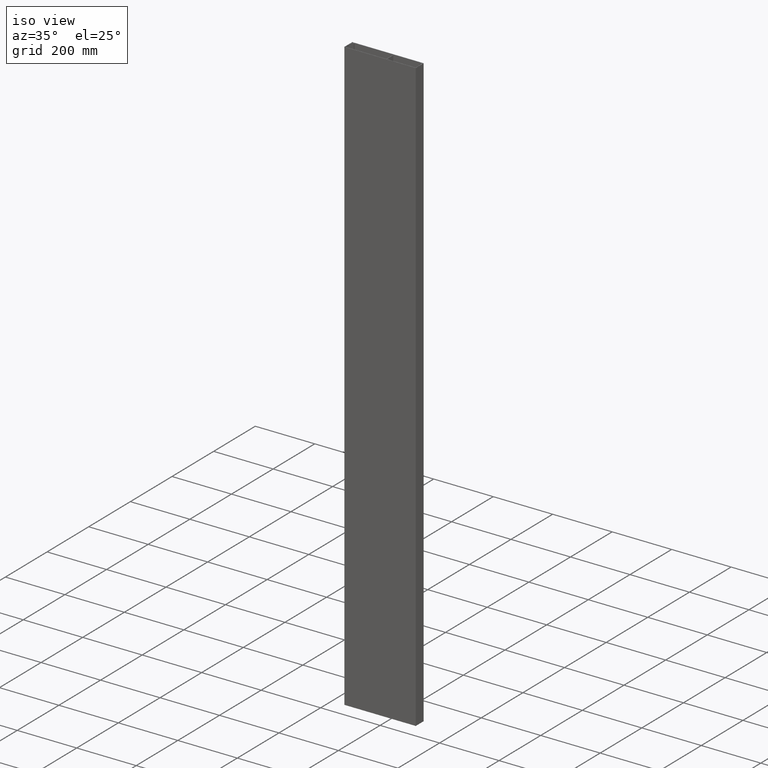
[diagram: clean part render]
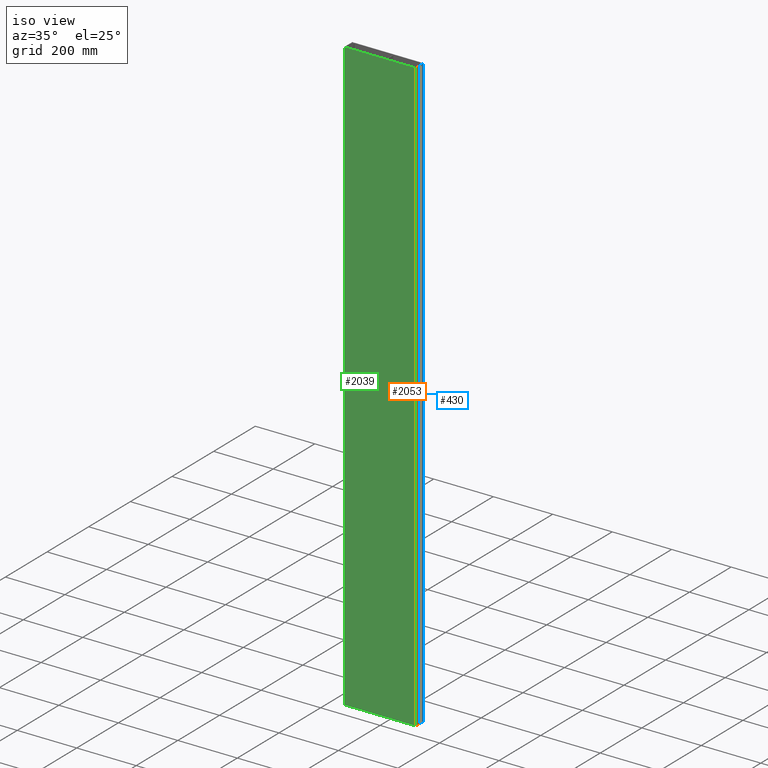
[diagram: same view with three faces highlighted in distinct colors, each labeled with its STEP entity id]
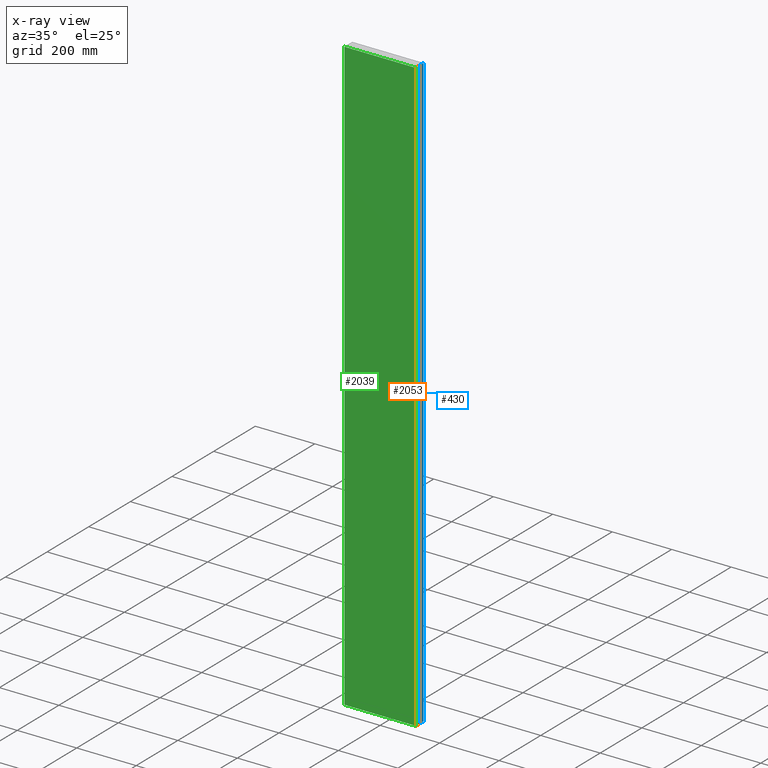
[diagram: x-ray of the same camera — body ghosted, the three highlighted faces saturated]
A machine part, iso view with three faces highlighted in distinct colors.
The next image is the same camera in x-ray (body ghosted, the three faces saturated) — at least one of them is partly hidden behind the body in this view.
Their STEP definitions:

[orange] entity #2053 — the highlighted planar face has unit normal (1, 0, 0).
#1475=DIRECTION('',(0.E0,1.E0,0.E0));
#1476=VECTOR('',#1475,1.99028E1);
#1477=CARTESIAN_POINT('',(1.2E2,0.E0,0.E0));
#1478=LINE('',#1477,#1476);
#1555=DIRECTION('',(0.E0,0.E0,-1.E0));
#1556=VECTOR('',#1555,2.E3);
#1557=CARTESIAN_POINT('',(1.2E2,0.E0,0.E0));
#1558=LINE('',#1557,#1556);
#1559=DIRECTION('',(0.E0,0.E0,-1.E0));
#1560=VECTOR('',#1559,2.E3);
#1561=CARTESIAN_POINT('',(1.2E2,1.99028E1,0.E0));
#1562=LINE('',#1561,#1560);
#1651=DIRECTION('',(0.E0,1.E0,0.E0));
#1652=VECTOR('',#1651,1.99028E1);
#1653=CARTESIAN_POINT('',(1.2E2,0.E0,-2.E3));
#1654=LINE('',#1653,#1652);
#1748=CARTESIAN_POINT('',(1.2E2,0.E0,0.E0));
#1750=VERTEX_POINT('',#1748);
#1751=CARTESIAN_POINT('',(1.2E2,1.99028E1,0.E0));
#1752=VERTEX_POINT('',#1751);
#1772=CARTESIAN_POINT('',(1.2E2,0.E0,-2.E3));
#1774=VERTEX_POINT('',#1772);
#1775=CARTESIAN_POINT('',(1.2E2,1.99028E1,-2.E3));
#1776=VERTEX_POINT('',#1775);
#2040=CARTESIAN_POINT('',(1.2E2,0.E0,0.E0));
#2041=DIRECTION('',(1.E0,0.E0,0.E0));
#2042=DIRECTION('',(0.E0,1.E0,0.E0));
#2043=AXIS2_PLACEMENT_3D('',#2040,#2041,#2042);
#2044=PLANE('',#2043);
#2045=ORIENTED_EDGE('',*,*,#1876,.T.);
#2047=ORIENTED_EDGE('',*,*,#2046,.T.);
#2049=ORIENTED_EDGE('',*,*,#2048,.F.);
#2050=ORIENTED_EDGE('',*,*,#2032,.F.);
#2051=EDGE_LOOP('',(#2045,#2047,#2049,#2050));
#2052=FACE_OUTER_BOUND('',#2051,.F.);
#1876=EDGE_CURVE('',#1750,#1752,#1478,.T.);
#2032=EDGE_CURVE('',#1750,#1774,#1558,.T.);
#2046=EDGE_CURVE('',#1752,#1776,#1562,.T.);
#2048=EDGE_CURVE('',#1774,#1776,#1654,.T.);
#2053=ADVANCED_FACE('',(#2052),#2044,.T.);

[blue] entity #430 — the highlighted planar face has unit normal (1, 0, 0).
#264=DIRECTION('',(0.E0,1.E0,0.E0));
#265=VECTOR('',#264,1.785E1);
#266=CARTESIAN_POINT('',(1.2E2,1.99028E1,0.E0));
#267=LINE('',#266,#265);
#296=DIRECTION('',(0.E0,0.E0,-1.E0));
#297=VECTOR('',#296,2.E3);
#298=CARTESIAN_POINT('',(1.2E2,1.99028E1,0.E0));
#299=LINE('',#298,#297);
#300=DIRECTION('',(0.E0,0.E0,-1.E0));
#301=VECTOR('',#300,2.E3);
#302=CARTESIAN_POINT('',(1.2E2,3.77528E1,0.E0));
#303=LINE('',#302,#301);
#328=DIRECTION('',(0.E0,1.E0,0.E0));
#329=VECTOR('',#328,1.785E1);
#330=CARTESIAN_POINT('',(1.2E2,1.99028E1,-2.E3));
#331=LINE('',#330,#329);
#360=CARTESIAN_POINT('',(1.2E2,1.99028E1,0.E0));
#361=CARTESIAN_POINT('',(1.2E2,3.77528E1,0.E0));
#362=VERTEX_POINT('',#360);
#363=VERTEX_POINT('',#361);
#376=CARTESIAN_POINT('',(1.2E2,1.99028E1,-2.E3));
#377=CARTESIAN_POINT('',(1.2E2,3.77528E1,-2.E3));
#378=VERTEX_POINT('',#376);
#379=VERTEX_POINT('',#377);
#416=CARTESIAN_POINT('',(1.2E2,1.99028E1,0.E0));
#417=DIRECTION('',(1.E0,0.E0,0.E0));
#418=DIRECTION('',(0.E0,1.E0,0.E0));
#419=AXIS2_PLACEMENT_3D('',#416,#417,#418);
#420=PLANE('',#419);
#421=ORIENTED_EDGE('',*,*,#397,.T.);
#423=ORIENTED_EDGE('',*,*,#422,.T.);
#425=ORIENTED_EDGE('',*,*,#424,.F.);
#427=ORIENTED_EDGE('',*,*,#426,.F.);
#428=EDGE_LOOP('',(#421,#423,#425,#427));
#429=FACE_OUTER_BOUND('',#428,.F.);
#397=EDGE_CURVE('',#362,#363,#267,.T.);
#422=EDGE_CURVE('',#363,#379,#303,.T.);
#424=EDGE_CURVE('',#378,#379,#331,.T.);
#426=EDGE_CURVE('',#362,#378,#299,.T.);
#430=ADVANCED_FACE('',(#429),#420,.T.);

[green] entity #2039 — the highlighted planar face has unit normal (0, -1, 0).
#1479=DIRECTION('',(1.E0,0.E0,0.E0));
#1480=VECTOR('',#1479,2.4E2);
#1481=CARTESIAN_POINT('',(-1.2E2,0.E0,0.E0));
#1482=LINE('',#1481,#1480);
#1551=DIRECTION('',(0.E0,0.E0,-1.E0));
#1552=VECTOR('',#1551,2.E3);
#1553=CARTESIAN_POINT('',(-1.2E2,0.E0,0.E0));
#1554=LINE('',#1553,#1552);
#1555=DIRECTION('',(0.E0,0.E0,-1.E0));
#1556=VECTOR('',#1555,2.E3);
#1557=CARTESIAN_POINT('',(1.2E2,0.E0,0.E0));
#1558=LINE('',#1557,#1556);
#1647=DIRECTION('',(1.E0,0.E0,0.E0));
#1648=VECTOR('',#1647,2.4E2);
#1649=CARTESIAN_POINT('',(-1.2E2,0.E0,-2.E3));
#1650=LINE('',#1649,#1648);
#1747=CARTESIAN_POINT('',(-1.2E2,0.E0,0.E0));
#1748=CARTESIAN_POINT('',(1.2E2,0.E0,0.E0));
#1749=VERTEX_POINT('',#1747);
#1750=VERTEX_POINT('',#1748);
#1771=CARTESIAN_POINT('',(-1.2E2,0.E0,-2.E3));
#1772=CARTESIAN_POINT('',(1.2E2,0.E0,-2.E3));
#1773=VERTEX_POINT('',#1771);
#1774=VERTEX_POINT('',#1772);
#2026=CARTESIAN_POINT('',(-1.2E2,0.E0,0.E0));
#2027=DIRECTION('',(0.E0,-1.E0,0.E0));
#2028=DIRECTION('',(1.E0,0.E0,0.E0));
#2029=AXIS2_PLACEMENT_3D('',#2026,#2027,#2028);
#2030=PLANE('',#2029);
#2031=ORIENTED_EDGE('',*,*,#1878,.T.);
#2033=ORIENTED_EDGE('',*,*,#2032,.T.);
#2035=ORIENTED_EDGE('',*,*,#2034,.F.);
#2036=ORIENTED_EDGE('',*,*,#2018,.F.);
#2037=EDGE_LOOP('',(#2031,#2033,#2035,#2036));
#2038=FACE_OUTER_BOUND('',#2037,.F.);
#1878=EDGE_CURVE('',#1749,#1750,#1482,.T.);
#2018=EDGE_CURVE('',#1749,#1773,#1554,.T.);
#2032=EDGE_CURVE('',#1750,#1774,#1558,.T.);
#2034=EDGE_CURVE('',#1773,#1774,#1650,.T.);
#2039=ADVANCED_FACE('',(#2038),#2030,.T.);